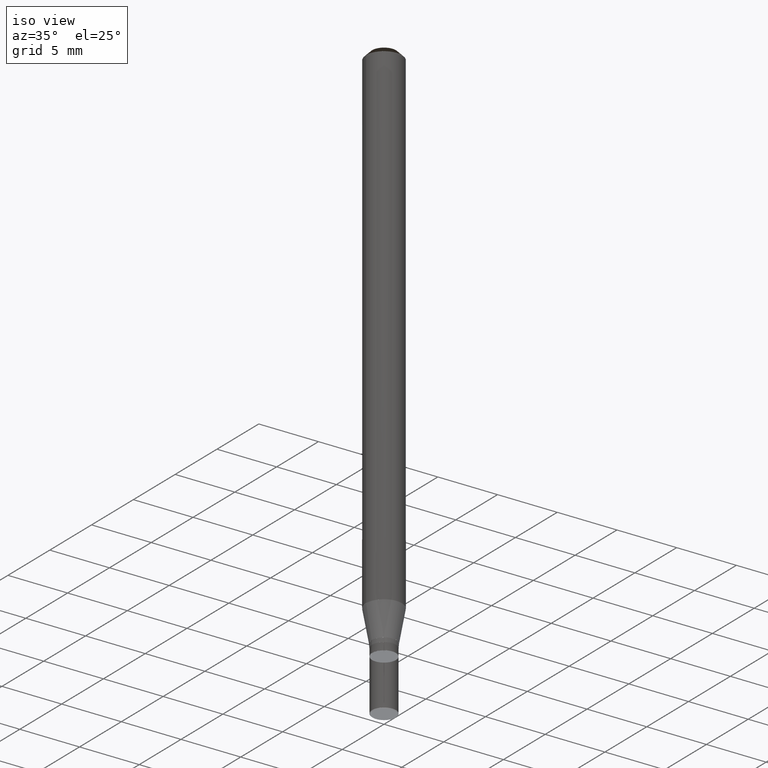
[diagram: clean part render]
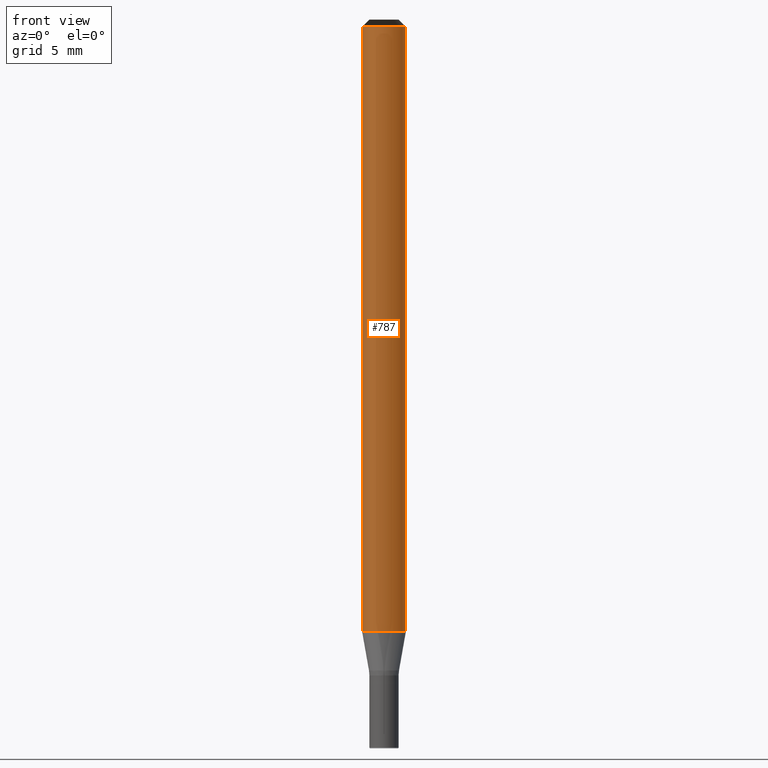
[diagram: tour spotlight — one face highlighted and labeled with its STEP entity id]
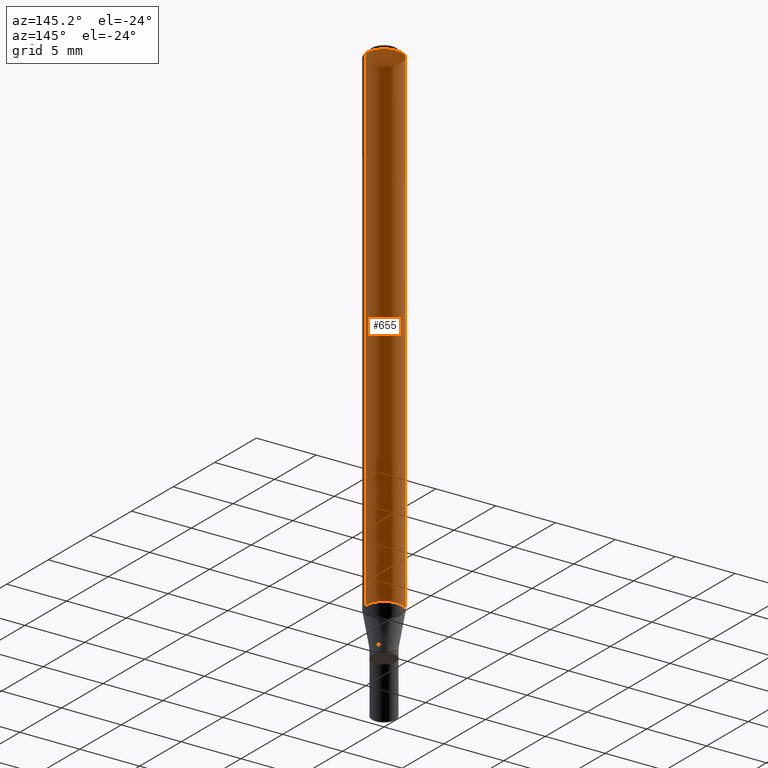
[diagram: tour spotlight — one face highlighted and labeled with its STEP entity id]
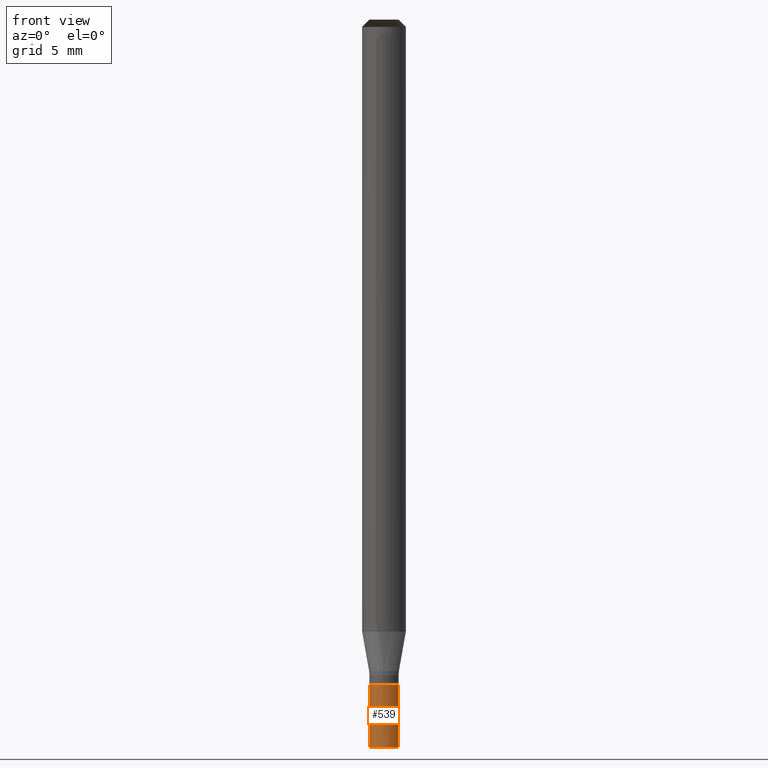
[diagram: tour spotlight — one face highlighted and labeled with its STEP entity id]
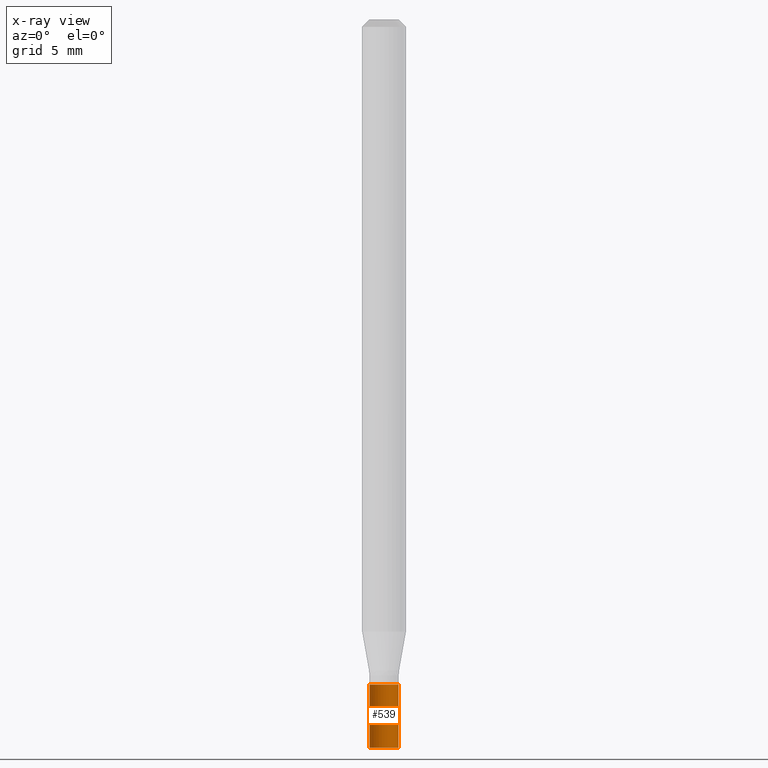
[diagram: x-ray of the same camera — body ghosted, this tour face saturated]
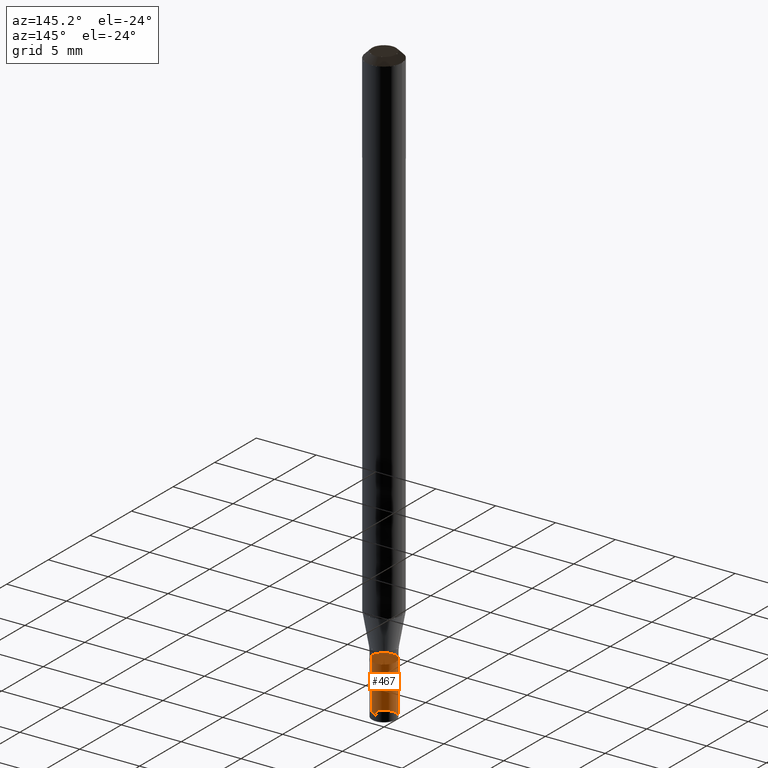
[diagram: tour spotlight — one face highlighted and labeled with its STEP entity id]
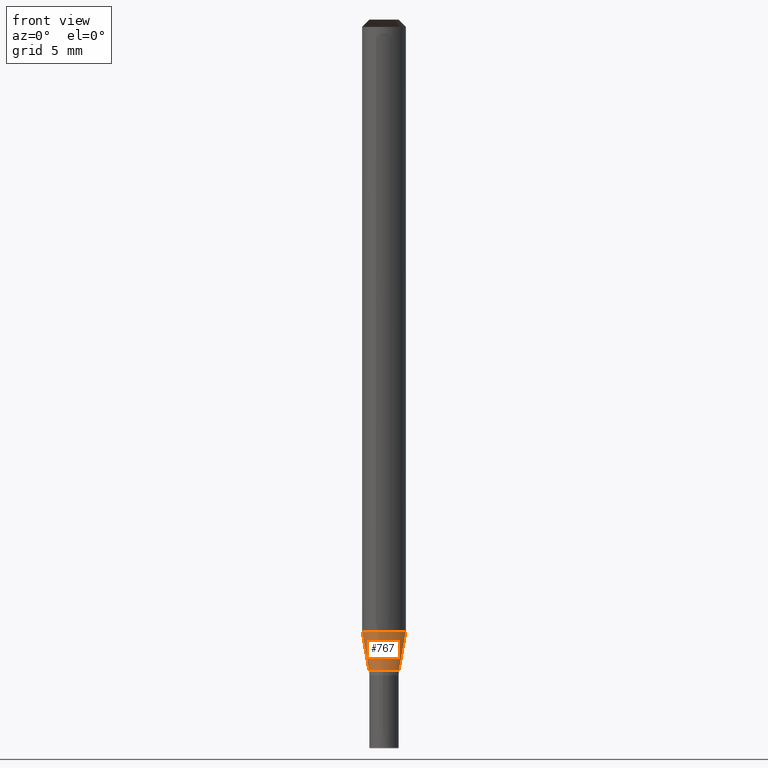
[diagram: tour spotlight — one face highlighted and labeled with its STEP entity id]
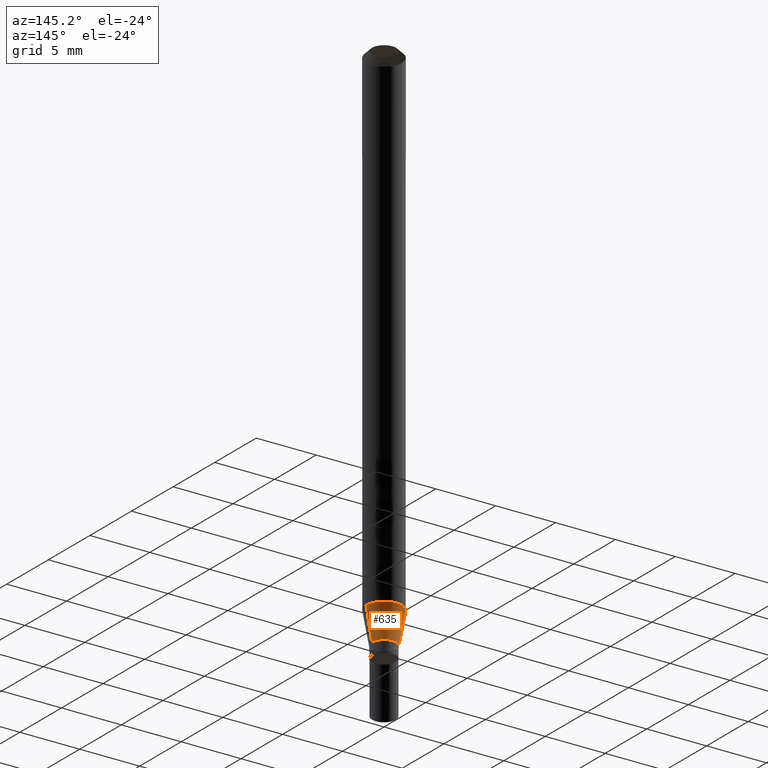
[diagram: tour spotlight — one face highlighted and labeled with its STEP entity id]
A machine part: a face-by-face anatomy tour. The part has 22 B-rep faces; the first image is the clean iso view, then the 6 largest visible faces are spotlighted one at a time (largest first), each with its STEP entity span.

Face 1 — front view, entity #787. In plain terms, the highlighted face is a freeform B-spline surface patch.
Definition (entity closure, byte-faithful):
#373=CARTESIAN_POINT('',(1.5,0.0,0.0));
#377=CARTESIAN_POINT('',(-1.5,0.0,0.0));
#378=CARTESIAN_POINT('',(1.5,0.0,41.489381763139));
#382=CARTESIAN_POINT('',(-1.5,0.0,41.489381763139));
#398=CARTESIAN_POINT('',(-1.5,-1.5,0.0));
#399=CARTESIAN_POINT('',(0.0,-1.5,0.0));
#400=CARTESIAN_POINT('',(1.5,-1.5,0.0));
#401=CARTESIAN_POINT('',(-1.5,-1.5,41.489381763139));
#402=CARTESIAN_POINT('',(0.0,-1.5,41.489381763139));
#403=CARTESIAN_POINT('',(1.5,-1.5,41.489381763139));
#768=(
BOUNDED_SURFACE()
B_SPLINE_SURFACE(1,2,(
(#377,#398,#399,#400,#373),
(#382,#401,#402,#403,#378)
), .UNSPECIFIED.,.F.,.F.,.F.)
B_SPLINE_SURFACE_WITH_KNOTS((2,2),(3,2,3),(
0.0,1.0),(
0.0,0.5,1.0), .UNSPECIFIED.)
GEOMETRIC_REPRESENTATION_ITEM()
RATIONAL_B_SPLINE_SURFACE(((1.0,0.707106781187,1.0,0.707106781187,1.0),
(1.0,0.707106781187,1.0,0.707106781187,1.0)
))
REPRESENTATION_ITEM('')
SURFACE()
);
#769=(
BOUNDED_CURVE()
B_SPLINE_CURVE(2,(#373,#400,#399,#398,#377),.UNSPECIFIED.,.F.,.F.)
B_SPLINE_CURVE_WITH_KNOTS((3,2,3),
(0.0,0.5,1.0),.UNSPECIFIED.)
CURVE()
GEOMETRIC_REPRESENTATION_ITEM()
RATIONAL_B_SPLINE_CURVE((1.0,0.707106781187,1.0,0.707106781187,1.0))
REPRESENTATION_ITEM('')
);
#770=(
BOUNDED_CURVE()
B_SPLINE_CURVE(1,(#377,#382),.UNSPECIFIED.,.F.,.F.)
B_SPLINE_CURVE_WITH_KNOTS((2,2),
(0.0,1.0),.UNSPECIFIED.)
CURVE()
GEOMETRIC_REPRESENTATION_ITEM()
RATIONAL_B_SPLINE_CURVE((1.0,1.0))
REPRESENTATION_ITEM('')
);
#771=(
BOUNDED_CURVE()
B_SPLINE_CURVE(2,(#382,#401,#402,#403,#378),.UNSPECIFIED.,.F.,.F.)
B_SPLINE_CURVE_WITH_KNOTS((3,2,3),
(0.0,0.5,1.0),.UNSPECIFIED.)
CURVE()
GEOMETRIC_REPRESENTATION_ITEM()
RATIONAL_B_SPLINE_CURVE((1.0,0.707106781187,1.0,0.707106781187,1.0))
REPRESENTATION_ITEM('')
);
#772=(
BOUNDED_CURVE()
B_SPLINE_CURVE(1,(#378,#373),.UNSPECIFIED.,.F.,.F.)
B_SPLINE_CURVE_WITH_KNOTS((2,2),
(0.0,1.0),.UNSPECIFIED.)
CURVE()
GEOMETRIC_REPRESENTATION_ITEM()
RATIONAL_B_SPLINE_CURVE((1.0,1.0))
REPRESENTATION_ITEM('')
);
#773=VERTEX_POINT('',#373);
#774=VERTEX_POINT('',#377);
#775=VERTEX_POINT('',#378);
#776=VERTEX_POINT('',#382);
#777=EDGE_CURVE('',#773,#774,#769,.T.);
#778=EDGE_CURVE('',#774,#776,#770,.T.);
#779=EDGE_CURVE('',#776,#775,#771,.T.);
#780=EDGE_CURVE('',#775,#773,#772,.T.);
#781=ORIENTED_EDGE('',*,*,#777,.T.);
#782=ORIENTED_EDGE('',*,*,#778,.T.);
#783=ORIENTED_EDGE('',*,*,#779,.T.);
#784=ORIENTED_EDGE('',*,*,#780,.T.);
#785=EDGE_LOOP('',(#781,#782,#783,#784));
#786=FACE_OUTER_BOUND('',#785,.T.);
#787=ADVANCED_FACE('',(#786),#768,.T.);

Face 2 — auxiliary view, entity #655. In plain terms, the highlighted face is a freeform B-spline surface patch.
Definition (entity closure, byte-faithful):
#373=CARTESIAN_POINT('',(1.5,0.0,0.0));
#374=CARTESIAN_POINT('',(1.5,1.5,0.0));
#375=CARTESIAN_POINT('',(0.0,1.5,0.0));
#376=CARTESIAN_POINT('',(-1.5,1.5,0.0));
#377=CARTESIAN_POINT('',(-1.5,0.0,0.0));
#378=CARTESIAN_POINT('',(1.5,0.0,41.489381763139));
#379=CARTESIAN_POINT('',(1.5,1.5,41.489381763139));
#380=CARTESIAN_POINT('',(0.0,1.5,41.489381763139));
#381=CARTESIAN_POINT('',(-1.5,1.5,41.489381763139));
#382=CARTESIAN_POINT('',(-1.5,0.0,41.489381763139));
#636=(
BOUNDED_SURFACE()
B_SPLINE_SURFACE(1,2,(
(#373,#374,#375,#376,#377),
(#378,#379,#380,#381,#382)
), .UNSPECIFIED.,.F.,.F.,.F.)
B_SPLINE_SURFACE_WITH_KNOTS((2,2),(3,2,3),(
0.0,1.0),(
0.0,0.5,1.0), .UNSPECIFIED.)
GEOMETRIC_REPRESENTATION_ITEM()
RATIONAL_B_SPLINE_SURFACE(((1.0,0.707106781187,1.0,0.707106781187,1.0),
(1.0,0.707106781187,1.0,0.707106781187,1.0)
))
REPRESENTATION_ITEM('')
SURFACE()
);
#637=(
BOUNDED_CURVE()
B_SPLINE_CURVE(2,(#377,#376,#375,#374,#373),.UNSPECIFIED.,.F.,.F.)
B_SPLINE_CURVE_WITH_KNOTS((3,2,3),
(0.0,0.5,1.0),.UNSPECIFIED.)
CURVE()
GEOMETRIC_REPRESENTATION_ITEM()
RATIONAL_B_SPLINE_CURVE((1.0,0.707106781187,1.0,0.707106781187,1.0))
REPRESENTATION_ITEM('')
);
#638=(
BOUNDED_CURVE()
B_SPLINE_CURVE(1,(#373,#378),.UNSPECIFIED.,.F.,.F.)
B_SPLINE_CURVE_WITH_KNOTS((2,2),
(0.0,1.0),.UNSPECIFIED.)
CURVE()
GEOMETRIC_REPRESENTATION_ITEM()
RATIONAL_B_SPLINE_CURVE((1.0,1.0))
REPRESENTATION_ITEM('')
);
#639=(
BOUNDED_CURVE()
B_SPLINE_CURVE(2,(#378,#379,#380,#381,#382),.UNSPECIFIED.,.F.,.F.)
B_SPLINE_CURVE_WITH_KNOTS((3,2,3),
(0.0,0.5,1.0),.UNSPECIFIED.)
CURVE()
GEOMETRIC_REPRESENTATION_ITEM()
RATIONAL_B_SPLINE_CURVE((1.0,0.707106781187,1.0,0.707106781187,1.0))
REPRESENTATION_ITEM('')
);
#640=(
BOUNDED_CURVE()
B_SPLINE_CURVE(1,(#382,#377),.UNSPECIFIED.,.F.,.F.)
B_SPLINE_CURVE_WITH_KNOTS((2,2),
(0.0,1.0),.UNSPECIFIED.)
CURVE()
GEOMETRIC_REPRESENTATION_ITEM()
RATIONAL_B_SPLINE_CURVE((1.0,1.0))
REPRESENTATION_ITEM('')
);
#641=VERTEX_POINT('',#373);
#642=VERTEX_POINT('',#377);
#643=VERTEX_POINT('',#378);
#644=VERTEX_POINT('',#382);
#645=EDGE_CURVE('',#642,#641,#637,.T.);
#646=EDGE_CURVE('',#641,#643,#638,.T.);
#647=EDGE_CURVE('',#643,#644,#639,.T.);
#648=EDGE_CURVE('',#644,#642,#640,.T.);
#649=ORIENTED_EDGE('',*,*,#645,.T.);
#650=ORIENTED_EDGE('',*,*,#646,.T.);
#651=ORIENTED_EDGE('',*,*,#647,.T.);
#652=ORIENTED_EDGE('',*,*,#648,.T.);
#653=EDGE_LOOP('',(#649,#650,#651,#652));
#654=FACE_OUTER_BOUND('',#653,.T.);
#655=ADVANCED_FACE('',(#654),#636,.T.);

Face 3 — front view, entity #539. An x-ray twin of the same camera follows (body ghosted, this face saturated) — the face is partly hidden behind the body. In plain terms, the highlighted face is a freeform B-spline surface patch.
Definition (entity closure, byte-faithful):
#338=CARTESIAN_POINT('',(1.0,0.0,-7.960618236861));
#342=CARTESIAN_POINT('',(-1.0,0.0,-7.960618236861));
#343=CARTESIAN_POINT('',(1.0,0.0,-3.635618236861));
#347=CARTESIAN_POINT('',(-1.0,0.0,-3.635618236861));
#352=CARTESIAN_POINT('',(-1.0,-1.0,-7.960618236861));
#353=CARTESIAN_POINT('',(0.0,-1.0,-7.960618236861));
#354=CARTESIAN_POINT('',(1.0,-1.0,-7.960618236861));
#355=CARTESIAN_POINT('',(-1.0,-1.0,-3.635618236861));
#356=CARTESIAN_POINT('',(0.0,-1.0,-3.635618236861));
#357=CARTESIAN_POINT('',(1.0,-1.0,-3.635618236861));
#520=(
BOUNDED_SURFACE()
B_SPLINE_SURFACE(1,2,(
(#342,#352,#353,#354,#338),
(#347,#355,#356,#357,#343)
), .UNSPECIFIED.,.F.,.F.,.F.)
B_SPLINE_SURFACE_WITH_KNOTS((2,2),(3,2,3),(
0.0,1.0),(
0.0,0.5,1.0), .UNSPECIFIED.)
GEOMETRIC_REPRESENTATION_ITEM()
RATIONAL_B_SPLINE_SURFACE(((1.0,0.707106781187,1.0,0.707106781187,1.0),
(1.0,0.707106781187,1.0,0.707106781187,1.0)
))
REPRESENTATION_ITEM('')
SURFACE()
);
#521=(
BOUNDED_CURVE()
B_SPLINE_CURVE(2,(#338,#354,#353,#352,#342),.UNSPECIFIED.,.F.,.F.)
B_SPLINE_CURVE_WITH_KNOTS((3,2,3),
(0.0,0.5,1.0),.UNSPECIFIED.)
CURVE()
GEOMETRIC_REPRESENTATION_ITEM()
RATIONAL_B_SPLINE_CURVE((1.0,0.707106781187,1.0,0.707106781187,1.0))
REPRESENTATION_ITEM('')
);
#522=(
BOUNDED_CURVE()
B_SPLINE_CURVE(1,(#342,#347),.UNSPECIFIED.,.F.,.F.)
B_SPLINE_CURVE_WITH_KNOTS((2,2),
(0.0,1.0),.UNSPECIFIED.)
CURVE()
GEOMETRIC_REPRESENTATION_ITEM()
RATIONAL_B_SPLINE_CURVE((1.0,1.0))
REPRESENTATION_ITEM('')
);
#523=(
BOUNDED_CURVE()
B_SPLINE_CURVE(2,(#347,#355,#356,#357,#343),.UNSPECIFIED.,.F.,.F.)
B_SPLINE_CURVE_WITH_KNOTS((3,2,3),
(0.0,0.5,1.0),.UNSPECIFIED.)
CURVE()
GEOMETRIC_REPRESENTATION_ITEM()
RATIONAL_B_SPLINE_CURVE((1.0,0.707106781187,1.0,0.707106781187,1.0))
REPRESENTATION_ITEM('')
);
#524=(
BOUNDED_CURVE()
B_SPLINE_CURVE(1,(#343,#338),.UNSPECIFIED.,.F.,.F.)
B_SPLINE_CURVE_WITH_KNOTS((2,2),
(0.0,1.0),.UNSPECIFIED.)
CURVE()
GEOMETRIC_REPRESENTATION_ITEM()
RATIONAL_B_SPLINE_CURVE((1.0,1.0))
REPRESENTATION_ITEM('')
);
#525=VERTEX_POINT('',#338);
#526=VERTEX_POINT('',#342);
#527=VERTEX_POINT('',#343);
#528=VERTEX_POINT('',#347);
#529=EDGE_CURVE('',#525,#526,#521,.T.);
#530=EDGE_CURVE('',#526,#528,#522,.T.);
#531=EDGE_CURVE('',#528,#527,#523,.T.);
#532=EDGE_CURVE('',#527,#525,#524,.T.);
#533=ORIENTED_EDGE('',*,*,#529,.T.);
#534=ORIENTED_EDGE('',*,*,#530,.T.);
#535=ORIENTED_EDGE('',*,*,#531,.T.);
#536=ORIENTED_EDGE('',*,*,#532,.T.);
#537=EDGE_LOOP('',(#533,#534,#535,#536));
#538=FACE_OUTER_BOUND('',#537,.T.);
#539=ADVANCED_FACE('',(#538),#520,.T.);

Face 4 — auxiliary view, entity #467. In plain terms, the highlighted face is a freeform B-spline surface patch.
Definition (entity closure, byte-faithful):
#338=CARTESIAN_POINT('',(1.0,0.0,-7.960618236861));
#339=CARTESIAN_POINT('',(1.0,1.0,-7.960618236861));
#340=CARTESIAN_POINT('',(0.0,1.0,-7.960618236861));
#341=CARTESIAN_POINT('',(-1.0,1.0,-7.960618236861));
#342=CARTESIAN_POINT('',(-1.0,0.0,-7.960618236861));
#343=CARTESIAN_POINT('',(1.0,0.0,-3.635618236861));
#344=CARTESIAN_POINT('',(1.0,1.0,-3.635618236861));
#345=CARTESIAN_POINT('',(0.0,1.0,-3.635618236861));
#346=CARTESIAN_POINT('',(-1.0,1.0,-3.635618236861));
#347=CARTESIAN_POINT('',(-1.0,0.0,-3.635618236861));
#448=(
BOUNDED_SURFACE()
B_SPLINE_SURFACE(1,2,(
(#338,#339,#340,#341,#342),
(#343,#344,#345,#346,#347)
), .UNSPECIFIED.,.F.,.F.,.F.)
B_SPLINE_SURFACE_WITH_KNOTS((2,2),(3,2,3),(
0.0,1.0),(
0.0,0.5,1.0), .UNSPECIFIED.)
GEOMETRIC_REPRESENTATION_ITEM()
RATIONAL_B_SPLINE_SURFACE(((1.0,0.707106781187,1.0,0.707106781187,1.0),
(1.0,0.707106781187,1.0,0.707106781187,1.0)
))
REPRESENTATION_ITEM('')
SURFACE()
);
#449=(
BOUNDED_CURVE()
B_SPLINE_CURVE(2,(#342,#341,#340,#339,#338),.UNSPECIFIED.,.F.,.F.)
B_SPLINE_CURVE_WITH_KNOTS((3,2,3),
(0.0,0.5,1.0),.UNSPECIFIED.)
CURVE()
GEOMETRIC_REPRESENTATION_ITEM()
RATIONAL_B_SPLINE_CURVE((1.0,0.707106781187,1.0,0.707106781187,1.0))
REPRESENTATION_ITEM('')
);
#450=(
BOUNDED_CURVE()
B_SPLINE_CURVE(1,(#338,#343),.UNSPECIFIED.,.F.,.F.)
B_SPLINE_CURVE_WITH_KNOTS((2,2),
(0.0,1.0),.UNSPECIFIED.)
CURVE()
GEOMETRIC_REPRESENTATION_ITEM()
RATIONAL_B_SPLINE_CURVE((1.0,1.0))
REPRESENTATION_ITEM('')
);
#451=(
BOUNDED_CURVE()
B_SPLINE_CURVE(2,(#343,#344,#345,#346,#347),.UNSPECIFIED.,.F.,.F.)
B_SPLINE_CURVE_WITH_KNOTS((3,2,3),
(0.0,0.5,1.0),.UNSPECIFIED.)
CURVE()
GEOMETRIC_REPRESENTATION_ITEM()
RATIONAL_B_SPLINE_CURVE((1.0,0.707106781187,1.0,0.707106781187,1.0))
REPRESENTATION_ITEM('')
);
#452=(
BOUNDED_CURVE()
B_SPLINE_CURVE(1,(#347,#342),.UNSPECIFIED.,.F.,.F.)
B_SPLINE_CURVE_WITH_KNOTS((2,2),
(0.0,1.0),.UNSPECIFIED.)
CURVE()
GEOMETRIC_REPRESENTATION_ITEM()
RATIONAL_B_SPLINE_CURVE((1.0,1.0))
REPRESENTATION_ITEM('')
);
#453=VERTEX_POINT('',#338);
#454=VERTEX_POINT('',#342);
#455=VERTEX_POINT('',#343);
#456=VERTEX_POINT('',#347);
#457=EDGE_CURVE('',#454,#453,#449,.T.);
#458=EDGE_CURVE('',#453,#455,#450,.T.);
#459=EDGE_CURVE('',#455,#456,#451,.T.);
#460=EDGE_CURVE('',#456,#454,#452,.T.);
#461=ORIENTED_EDGE('',*,*,#457,.T.);
#462=ORIENTED_EDGE('',*,*,#458,.T.);
#463=ORIENTED_EDGE('',*,*,#459,.T.);
#464=ORIENTED_EDGE('',*,*,#460,.T.);
#465=EDGE_LOOP('',(#461,#462,#463,#464));
#466=FACE_OUTER_BOUND('',#465,.T.);
#467=ADVANCED_FACE('',(#466),#448,.T.);

Face 5 — front view, entity #767. In plain terms, the highlighted face is a freeform B-spline surface patch.
Definition (entity closure, byte-faithful):
#368=CARTESIAN_POINT('',(1.030384493976,0.0,-2.663321881527));
#372=CARTESIAN_POINT('',(-1.030384493976,0.0,-2.663321881527));
#373=CARTESIAN_POINT('',(1.5,0.0,0.0));
#377=CARTESIAN_POINT('',(-1.5,0.0,0.0));
#395=CARTESIAN_POINT('',(-1.030384493976,-1.030384493976,-2.663321881527));
#396=CARTESIAN_POINT('',(0.0,-1.030384493976,-2.663321881527));
#397=CARTESIAN_POINT('',(1.030384493976,-1.030384493976,-2.663321881527));
#398=CARTESIAN_POINT('',(-1.5,-1.5,0.0));
#399=CARTESIAN_POINT('',(0.0,-1.5,0.0));
#400=CARTESIAN_POINT('',(1.5,-1.5,0.0));
#748=(
BOUNDED_SURFACE()
B_SPLINE_SURFACE(1,2,(
(#372,#395,#396,#397,#368),
(#377,#398,#399,#400,#373)
), .UNSPECIFIED.,.F.,.F.,.F.)
B_SPLINE_SURFACE_WITH_KNOTS((2,2),(3,2,3),(
0.0,1.0),(
0.0,0.5,1.0), .UNSPECIFIED.)
GEOMETRIC_REPRESENTATION_ITEM()
RATIONAL_B_SPLINE_SURFACE(((1.0,0.707106781187,1.0,0.707106781187,1.0),
(1.0,0.707106781187,1.0,0.707106781187,1.0)
))
REPRESENTATION_ITEM('')
SURFACE()
);
#749=(
BOUNDED_CURVE()
B_SPLINE_CURVE(2,(#368,#397,#396,#395,#372),.UNSPECIFIED.,.F.,.F.)
B_SPLINE_CURVE_WITH_KNOTS((3,2,3),
(0.0,0.5,1.0),.UNSPECIFIED.)
CURVE()
GEOMETRIC_REPRESENTATION_ITEM()
RATIONAL_B_SPLINE_CURVE((1.0,0.707106781187,1.0,0.707106781187,1.0))
REPRESENTATION_ITEM('')
);
#750=(
BOUNDED_CURVE()
B_SPLINE_CURVE(1,(#372,#377),.UNSPECIFIED.,.F.,.F.)
B_SPLINE_CURVE_WITH_KNOTS((2,2),
(0.0,1.0),.UNSPECIFIED.)
CURVE()
GEOMETRIC_REPRESENTATION_ITEM()
RATIONAL_B_SPLINE_CURVE((1.0,1.0))
REPRESENTATION_ITEM('')
);
#751=(
BOUNDED_CURVE()
B_SPLINE_CURVE(2,(#377,#398,#399,#400,#373),.UNSPECIFIED.,.F.,.F.)
B_SPLINE_CURVE_WITH_KNOTS((3,2,3),
(0.0,0.5,1.0),.UNSPECIFIED.)
CURVE()
GEOMETRIC_REPRESENTATION_ITEM()
RATIONAL_B_SPLINE_CURVE((1.0,0.707106781187,1.0,0.707106781187,1.0))
REPRESENTATION_ITEM('')
);
#752=(
BOUNDED_CURVE()
B_SPLINE_CURVE(1,(#373,#368),.UNSPECIFIED.,.F.,.F.)
B_SPLINE_CURVE_WITH_KNOTS((2,2),
(0.0,1.0),.UNSPECIFIED.)
CURVE()
GEOMETRIC_REPRESENTATION_ITEM()
RATIONAL_B_SPLINE_CURVE((1.0,1.0))
REPRESENTATION_ITEM('')
);
#753=VERTEX_POINT('',#368);
#754=VERTEX_POINT('',#372);
#755=VERTEX_POINT('',#373);
#756=VERTEX_POINT('',#377);
#757=EDGE_CURVE('',#753,#754,#749,.T.);
#758=EDGE_CURVE('',#754,#756,#750,.T.);
#759=EDGE_CURVE('',#756,#755,#751,.T.);
#760=EDGE_CURVE('',#755,#753,#752,.T.);
#761=ORIENTED_EDGE('',*,*,#757,.T.);
#762=ORIENTED_EDGE('',*,*,#758,.T.);
#763=ORIENTED_EDGE('',*,*,#759,.T.);
#764=ORIENTED_EDGE('',*,*,#760,.T.);
#765=EDGE_LOOP('',(#761,#762,#763,#764));
#766=FACE_OUTER_BOUND('',#765,.T.);
#767=ADVANCED_FACE('',(#766),#748,.T.);

Face 6 — auxiliary view, entity #635. In plain terms, the highlighted face is a freeform B-spline surface patch.
Definition (entity closure, byte-faithful):
#368=CARTESIAN_POINT('',(1.030384493976,0.0,-2.663321881527));
#369=CARTESIAN_POINT('',(1.030384493976,1.030384493976,-2.663321881527));
#370=CARTESIAN_POINT('',(0.0,1.030384493976,-2.663321881527));
#371=CARTESIAN_POINT('',(-1.030384493976,1.030384493976,-2.663321881527));
#372=CARTESIAN_POINT('',(-1.030384493976,0.0,-2.663321881527));
#373=CARTESIAN_POINT('',(1.5,0.0,0.0));
#374=CARTESIAN_POINT('',(1.5,1.5,0.0));
#375=CARTESIAN_POINT('',(0.0,1.5,0.0));
#376=CARTESIAN_POINT('',(-1.5,1.5,0.0));
#377=CARTESIAN_POINT('',(-1.5,0.0,0.0));
#616=(
BOUNDED_SURFACE()
B_SPLINE_SURFACE(1,2,(
(#368,#369,#370,#371,#372),
(#373,#374,#375,#376,#377)
), .UNSPECIFIED.,.F.,.F.,.F.)
B_SPLINE_SURFACE_WITH_KNOTS((2,2),(3,2,3),(
0.0,1.0),(
0.0,0.5,1.0), .UNSPECIFIED.)
GEOMETRIC_REPRESENTATION_ITEM()
RATIONAL_B_SPLINE_SURFACE(((1.0,0.707106781187,1.0,0.707106781187,1.0),
(1.0,0.707106781187,1.0,0.707106781187,1.0)
))
REPRESENTATION_ITEM('')
SURFACE()
);
#617=(
BOUNDED_CURVE()
B_SPLINE_CURVE(2,(#372,#371,#370,#369,#368),.UNSPECIFIED.,.F.,.F.)
B_SPLINE_CURVE_WITH_KNOTS((3,2,3),
(0.0,0.5,1.0),.UNSPECIFIED.)
CURVE()
GEOMETRIC_REPRESENTATION_ITEM()
RATIONAL_B_SPLINE_CURVE((1.0,0.707106781187,1.0,0.707106781187,1.0))
REPRESENTATION_ITEM('')
);
#618=(
BOUNDED_CURVE()
B_SPLINE_CURVE(1,(#368,#373),.UNSPECIFIED.,.F.,.F.)
B_SPLINE_CURVE_WITH_KNOTS((2,2),
(0.0,1.0),.UNSPECIFIED.)
CURVE()
GEOMETRIC_REPRESENTATION_ITEM()
RATIONAL_B_SPLINE_CURVE((1.0,1.0))
REPRESENTATION_ITEM('')
);
#619=(
BOUNDED_CURVE()
B_SPLINE_CURVE(2,(#373,#374,#375,#376,#377),.UNSPECIFIED.,.F.,.F.)
B_SPLINE_CURVE_WITH_KNOTS((3,2,3),
(0.0,0.5,1.0),.UNSPECIFIED.)
CURVE()
GEOMETRIC_REPRESENTATION_ITEM()
RATIONAL_B_SPLINE_CURVE((1.0,0.707106781187,1.0,0.707106781187,1.0))
REPRESENTATION_ITEM('')
);
#620=(
BOUNDED_CURVE()
B_SPLINE_CURVE(1,(#377,#372),.UNSPECIFIED.,.F.,.F.)
B_SPLINE_CURVE_WITH_KNOTS((2,2),
(0.0,1.0),.UNSPECIFIED.)
CURVE()
GEOMETRIC_REPRESENTATION_ITEM()
RATIONAL_B_SPLINE_CURVE((1.0,1.0))
REPRESENTATION_ITEM('')
);
#621=VERTEX_POINT('',#368);
#622=VERTEX_POINT('',#372);
#623=VERTEX_POINT('',#373);
#624=VERTEX_POINT('',#377);
#625=EDGE_CURVE('',#622,#621,#617,.T.);
#626=EDGE_CURVE('',#621,#623,#618,.T.);
#627=EDGE_CURVE('',#623,#624,#619,.T.);
#628=EDGE_CURVE('',#624,#622,#620,.T.);
#629=ORIENTED_EDGE('',*,*,#625,.T.);
#630=ORIENTED_EDGE('',*,*,#626,.T.);
#631=ORIENTED_EDGE('',*,*,#627,.T.);
#632=ORIENTED_EDGE('',*,*,#628,.T.);
#633=EDGE_LOOP('',(#629,#630,#631,#632));
#634=FACE_OUTER_BOUND('',#633,.T.);
#635=ADVANCED_FACE('',(#634),#616,.T.);